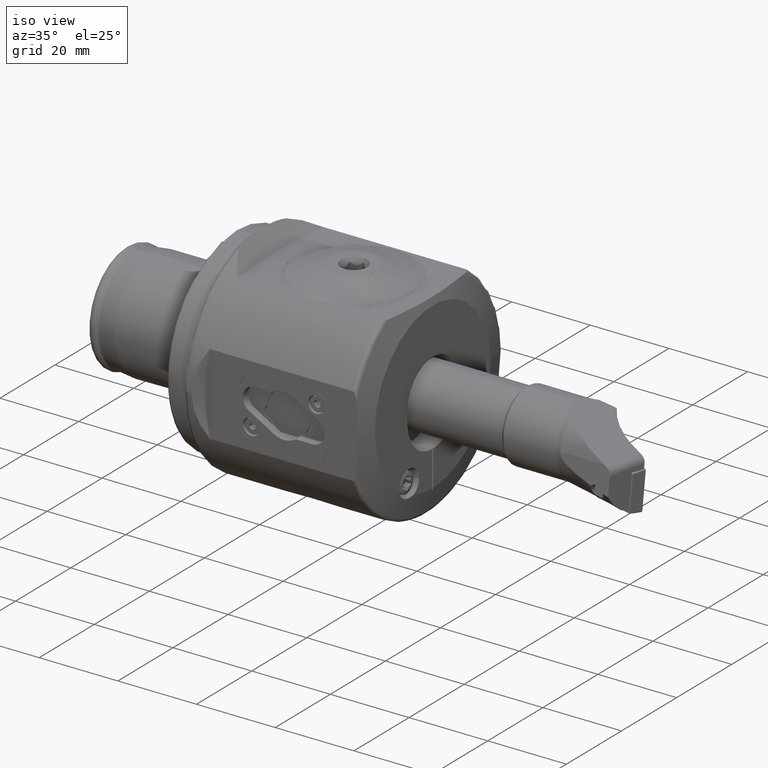
[diagram: clean part render]
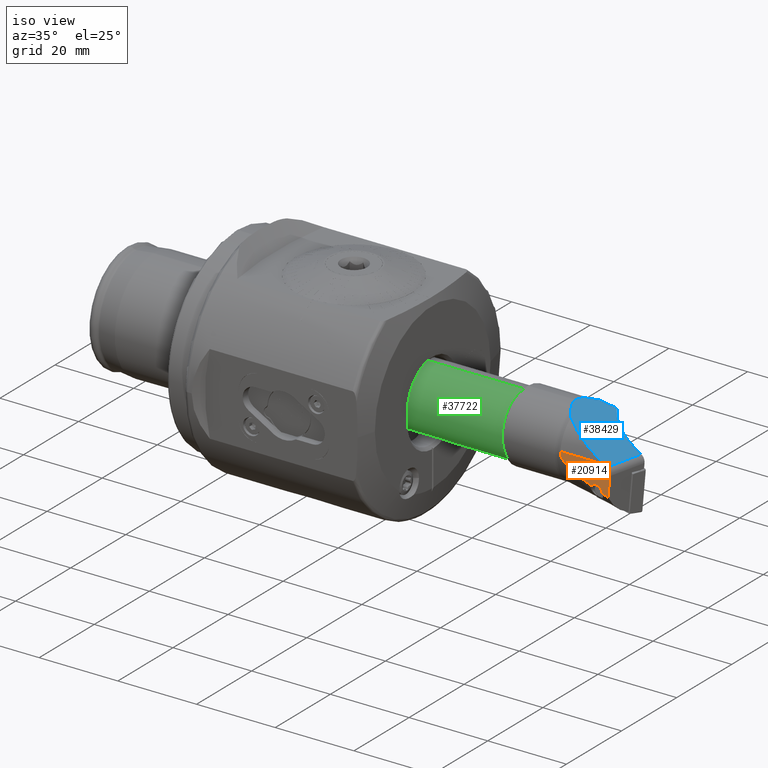
[diagram: same view with three faces highlighted in distinct colors, each labeled with its STEP entity id]
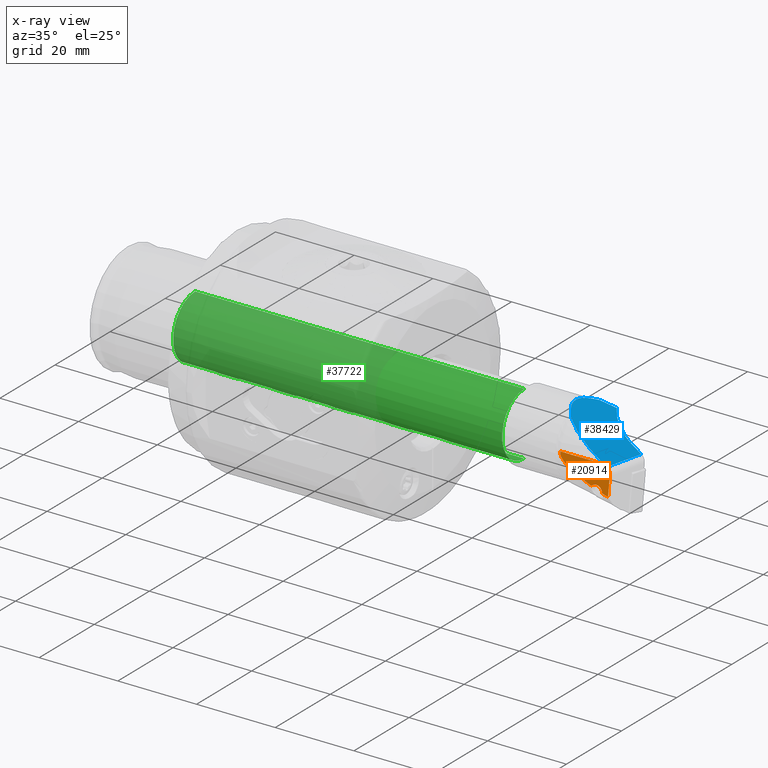
[diagram: x-ray of the same camera — body ghosted, the three highlighted faces saturated]
A machine part, iso view with three faces highlighted in distinct colors.
The next image is the same camera in x-ray (body ghosted, the three faces saturated) — at least one of them is partly hidden behind the body in this view.
Their STEP definitions:

[orange] entity #20914 — the highlighted planar face has unit normal (0, -0.9903, 0.1392).
#55 = CARTESIAN_POINT ( 'NONE',  ( 111.5769048688166800, -9.110466232422449900, 1.280392528832599900 ) ) ;
#392 = B_SPLINE_CURVE_WITH_KNOTS ( 'NONE', 3,
 ( #19916, #41211, #27107, #6178, #30753, #9709, #34252, #13151, #37773, #16600, #41367, #20068, #44915, #23670, #2857, #27258, #6346, #30912 ),
 .UNSPECIFIED., .F., .F.,
 ( 4, 2, 2, 2, 2, 2, 2, 2, 4 ),
 ( 1.987282006585292200E-007, 0.0006552519725536997200, 0.001310305216906740900, 0.001965358461259782500, 0.002620411705612823400, 0.003930518194318939400, 0.005240624683025055900, 0.007860837660437325300, 0.01048105063784959600 ),
 .UNSPECIFIED. ) ;
#669 =( BOUNDED_CURVE ( )  B_SPLINE_CURVE ( 3, ( #19282, #40560, #26435, #5530 ),
 .UNSPECIFIED., .F., .F. ) 
 B_SPLINE_CURVE_WITH_KNOTS ( ( 4, 4 ),
 ( 5.763884693139955200, 6.802485921219215500 ),
 .UNSPECIFIED. ) 
 CURVE ( )  GEOMETRIC_REPRESENTATION_ITEM ( )  RATIONAL_B_SPLINE_CURVE ( ( 1.000000000000000000, 0.9121109855992486400, 0.9121109855992486400, 1.000000000000000000 ) ) 
 REPRESENTATION_ITEM ( '' )  );
#1428 = CARTESIAN_POINT ( 'NONE',  ( 112.3663680754273600, -9.173900885769656500, 0.8290315170559439100 ) ) ;
#1490 = CARTESIAN_POINT ( 'NONE',  ( 114.0294571135343500, -9.307532796331747300, -0.1218089333019142700 ) ) ;
#1531 = EDGE_CURVE ( 'NONE', #36490, #44803, #43460, .T. ) ;
#2232 = DIRECTION ( 'NONE',  ( -0.8660254037844397100, 0.06958655048003246900, 0.4951340343707832400 ) ) ;
#2685 = VERTEX_POINT ( 'NONE', #40298 ) ;
#2857 = CARTESIAN_POINT ( 'NONE',  ( 105.7073590255302100, -9.695733171970324800, -2.883998132338801300 ) ) ;
#3381 = EDGE_LOOP ( 'NONE', ( #26532, #20210, #11652, #39117, #18811, #31672, #20221, #24393 ) ) ;
#4045 = CARTESIAN_POINT ( 'NONE',  ( 110.1554933045272700, -9.793501442673166600, -3.579655525507661600 ) ) ;
#4362 = CARTESIAN_POINT ( 'NONE',  ( 112.8360856719757400, -10.04008534867324800, -5.334191184287879800 ) ) ;
#5530 = CARTESIAN_POINT ( 'NONE',  ( 112.3663680754273600, -9.173900885769656500, 0.8290315170559439100 ) ) ;
#5669 = CARTESIAN_POINT ( 'NONE',  ( 110.1554933045272700, -10.02313705925727500, -5.213597838931251600 ) ) ;
#6178 = CARTESIAN_POINT ( 'NONE',  ( 100.7462794054797400, -9.228409038015676900, 0.4411858609415240700 ) ) ;
#6346 = CARTESIAN_POINT ( 'NONE',  ( 108.1316334789693900, -9.826750711387155900, -3.816236365406596100 ) ) ;
#6540 = VERTEX_POINT ( 'NONE', #4045 ) ;
#6564 = LINE ( 'NONE', #26798, #23963 ) ;
#6639 = CARTESIAN_POINT ( 'NONE',  ( 108.9504250321108000, -9.866277770711130700, -4.097486006536057000 ) ) ;
#6940 = CARTESIAN_POINT ( 'NONE',  ( 113.3589142270677600, -10.06160103403277600, -5.487283240451421100 ) ) ;
#8668 = B_SPLINE_CURVE_WITH_KNOTS ( 'NONE', 3,
 ( #42918, #18124, #4362, #28872 ),
 .UNSPECIFIED., .F., .F.,
 ( 4, 4 ),
 ( 0.01349627439771122800, 0.01514428454471194300 ),
 .UNSPECIFIED. ) ;
#9202 = DIRECTION ( 'NONE',  ( 0.0000000000000000000, -0.1391731009600651000, -0.9902680687415703600 ) ) ;
#9419 = DIRECTION ( 'NONE',  ( -1.000000000000000000, -8.673617379884034200E-017, 0.0000000000000000000 ) ) ;
#9709 = CARTESIAN_POINT ( 'NONE',  ( 101.1194382890196600, -9.303652733762181300, -0.09420085357345628400 ) ) ;
#10950 = CARTESIAN_POINT ( 'NONE',  ( 100.5382313599749400, -9.110466232422451700, 1.280392528832599200 ) ) ;
#11207 = VERTEX_POINT ( 'NONE', #44936 ) ;
#11438 = AXIS2_PLACEMENT_3D ( 'NONE', #35661, #14566, #39259 ) ;
#11652 = ORIENTED_EDGE ( 'NONE', *, *, #1531, .T. ) ;
#12941 = FACE_OUTER_BOUND ( 'NONE', #3381, .T. ) ;
#13151 = CARTESIAN_POINT ( 'NONE',  ( 101.5799331571696600, -9.368430106590549800, -0.5551158108920015700 ) ) ;
#13252 = EDGE_CURVE ( 'NONE', #22685, #2685, #42718, .T. ) ;
#14566 = DIRECTION ( 'NONE',  ( -8.589206331781083100E-017, 0.9902680687415703600, -0.1391731009600656000 ) ) ;
#14930 = DIRECTION ( 'NONE',  ( 0.0000000000000000000, -0.1391731009600655800, -0.9902680687415702500 ) ) ;
#15071 = DIRECTION ( 'NONE',  ( 8.589206331781083100E-017, -0.9902680687415703600, 0.1391731009600656000 ) ) ;
#15214 = PLANE ( 'NONE',  #34885 ) ;
#15673 = CARTESIAN_POINT ( 'NONE',  ( 115.0000000000000000, -9.110466232422449900, 1.280392528832599200 ) ) ;
#16600 = CARTESIAN_POINT ( 'NONE',  ( 102.2614999293298600, -9.444249427947230700, -1.094598314445069100 ) ) ;
#18124 = CARTESIAN_POINT ( 'NONE',  ( 112.3142572082866900, -10.01814299224514700, -5.178063205721617400 ) ) ;
#18811 = ORIENTED_EDGE ( 'NONE', *, *, #29265, .T. ) ;
#19282 = CARTESIAN_POINT ( 'NONE',  ( 113.3589142270686800, -9.413158981143531900, -0.8733782906026246200 ) ) ;
#19916 = CARTESIAN_POINT ( 'NONE',  ( 100.5382313599749400, -9.110466232422451700, 1.280392528832599200 ) ) ;
#20068 = CARTESIAN_POINT ( 'NONE',  ( 103.3728591520640200, -9.539227116706257400, -1.770399685343084600 ) ) ;
#20210 = ORIENTED_EDGE ( 'NONE', *, *, #31814, .T. ) ;
#20221 = ORIENTED_EDGE ( 'NONE', *, *, #25272, .T. ) ;
#20914 = ADVANCED_FACE ( 'NONE', ( #12941 ), #15214, .T. ) ;
#21554 = CARTESIAN_POINT ( 'NONE',  ( 113.3589142270686800, -10.95514547250020200, -11.84518228352731500 ) ) ;
#22685 = VERTEX_POINT ( 'NONE', #6940 ) ;
#23670 = CARTESIAN_POINT ( 'NONE',  ( 104.9133417737076900, -9.648039232792855900, -2.544638121574216400 ) ) ;
#23963 = VECTOR ( 'NONE', #9419, 1000.000000000000000 ) ;
#24393 = ORIENTED_EDGE ( 'NONE', *, *, #44945, .T. ) ;
#25272 = EDGE_CURVE ( 'NONE', #6540, #11207, #30236, .T. ) ;
#25658 = EDGE_CURVE ( 'NONE', #41868, #6540, #28003, .T. ) ;
#26435 = CARTESIAN_POINT ( 'NONE',  ( 112.9961856529835800, -9.224507753030492200, 0.4689449460034944000 ) ) ;
#26532 = ORIENTED_EDGE ( 'NONE', *, *, #13252, .T. ) ;
#26798 = CARTESIAN_POINT ( 'NONE',  ( 115.0000000000000000, -9.110466232422449900, 1.280392528832599200 ) ) ;
#27107 = CARTESIAN_POINT ( 'NONE',  ( 100.5842763543046900, -9.171336470702526000, 0.8472782783802462700 ) ) ;
#27258 = CARTESIAN_POINT ( 'NONE',  ( 107.3164540092876100, -9.785175525566325300, -3.520413547014574500 ) ) ;
#28003 = CIRCLE ( 'NONE', #11438, 1.649999999999999000 ) ;
#28872 = CARTESIAN_POINT ( 'NONE',  ( 113.3589142270677600, -10.06160103403277600, -5.487283240451421100 ) ) ;
#29265 = EDGE_CURVE ( 'NONE', #32693, #41868, #392, .T. ) ;
#30218 = DIRECTION ( 'NONE',  ( -8.589206331781083100E-017, 0.9902680687415703600, -0.1391731009600656000 ) ) ;
#30236 = CIRCLE ( 'NONE', #45406, 1.649999999999999000 ) ;
#30753 = CARTESIAN_POINT ( 'NONE',  ( 100.8579471295959300, -9.254503144262018900, 0.2555166474236100200 ) ) ;
#30912 = CARTESIAN_POINT ( 'NONE',  ( 108.9504250321108000, -9.866277770711130700, -4.097486006536057000 ) ) ;
#31672 = ORIENTED_EDGE ( 'NONE', *, *, #25658, .T. ) ;
#31814 = EDGE_CURVE ( 'NONE', #2685, #36490, #669, .T. ) ;
#32693 = VERTEX_POINT ( 'NONE', #10950 ) ;
#33261 = EDGE_CURVE ( 'NONE', #44803, #32693, #6564, .T. ) ;
#34252 = CARTESIAN_POINT ( 'NONE',  ( 101.2673849842539700, -9.326269440584608700, -0.2551270845178004700 ) ) ;
#34885 = AXIS2_PLACEMENT_3D ( 'NONE', #15673, #15071, #14930 ) ;
#35661 = CARTESIAN_POINT ( 'NONE',  ( 110.1554933045272700, -10.02313705925727500, -5.213597838931251600 ) ) ;
#36490 = VERTEX_POINT ( 'NONE', #1428 ) ;
#37773 = CARTESIAN_POINT ( 'NONE',  ( 101.7455671068393700, -9.388101247881477800, -0.6950832540382119200 ) ) ;
#39015 = DIRECTION ( 'NONE',  ( -1.400806251305398600E-017, 0.1391731009600656000, 0.9902680687415703600 ) ) ;
#39117 = ORIENTED_EDGE ( 'NONE', *, *, #33261, .T. ) ;
#39259 = DIRECTION ( 'NONE',  ( -8.410780489584524800E-015, -0.1391731009600651000, -0.9902680687415703600 ) ) ;
#40298 = CARTESIAN_POINT ( 'NONE',  ( 113.3589142270686800, -9.413158981143531900, -0.8733782906026246200 ) ) ;
#40560 = CARTESIAN_POINT ( 'NONE',  ( 113.3589142270686900, -9.311945246621865700, -0.1532051484977413300 ) ) ;
#41211 = CARTESIAN_POINT ( 'NONE',  ( 100.5382313599749300, -9.141349516282712500, 1.060646545925526100 ) ) ;
#41367 = CARTESIAN_POINT ( 'NONE',  ( 102.6280333394374700, -9.477646081028375100, -1.332227848607597600 ) ) ;
#41868 = VERTEX_POINT ( 'NONE', #6639 ) ;
#42718 = LINE ( 'NONE', #21554, #42982 ) ;
#42918 = CARTESIAN_POINT ( 'NONE',  ( 111.7936543085675100, -9.995677770919829900, -5.018214850096781800 ) ) ;
#42982 = VECTOR ( 'NONE', #39015, 999.9999999999998900 ) ;
#43243 = VECTOR ( 'NONE', #2232, 1000.000000000000100 ) ;
#43460 = LINE ( 'NONE', #1490, #43243 ) ;
#44803 = VERTEX_POINT ( 'NONE', #55 ) ;
#44915 = CARTESIAN_POINT ( 'NONE',  ( 103.7539621381306000, -9.567564362632383600, -1.972029667021573600 ) ) ;
#44936 = CARTESIAN_POINT ( 'NONE',  ( 111.7936543085675100, -9.995677770919829900, -5.018214850096781800 ) ) ;
#44945 = EDGE_CURVE ( 'NONE', #11207, #22685, #8668, .T. ) ;
#45406 = AXIS2_PLACEMENT_3D ( 'NONE', #5669, #30218, #9202 ) ;

[blue] entity #38429 — the highlighted planar face has unit normal (-0.4963, 0.0011, -0.8682).
#55 = CARTESIAN_POINT ( 'NONE',  ( 111.5769048688166800, -9.110466232422449900, 1.280392528832599900 ) ) ;
#1389 = VECTOR ( 'NONE', #15544, 1000.000000000000200 ) ;
#1428 = CARTESIAN_POINT ( 'NONE',  ( 112.3663680754273600, -9.173900885769656500, 0.8290315170559439100 ) ) ;
#1490 = CARTESIAN_POINT ( 'NONE',  ( 114.0294571135343500, -9.307532796331747300, -0.1218089333019142700 ) ) ;
#1531 = EDGE_CURVE ( 'NONE', #36490, #44803, #43460, .T. ) ;
#2232 = DIRECTION ( 'NONE',  ( -0.8660254037844397100, 0.06958655048003246900, 0.4951340343707832400 ) ) ;
#2256 = CARTESIAN_POINT ( 'NONE',  ( 100.5382313599749000, 5.173112694648220400, 7.607818678732391100 ) ) ;
#2301 = CARTESIAN_POINT ( 'NONE',  ( 100.2096549170152000, 4.794527520458168500, 7.795184390680554500 ) ) ;
#2309 = CARTESIAN_POINT ( 'NONE',  ( 99.91746879905727500, 4.407241666153098900, 7.961737591236588900 ) ) ;
#2353 = B_SPLINE_CURVE_WITH_KNOTS ( 'NONE', 3,
 ( #9687, #30732, #13124, #37755 ),
 .UNSPECIFIED., .F., .F.,
 ( 4, 4 ),
 ( 3.858973815313627300E-007, 0.0009931425329959117600 ),
 .UNSPECIFIED. ) ;
#2409 = CARTESIAN_POINT ( 'NONE',  ( 99.66245353847440900, 4.012289709108245000, 8.107033357945542900 ) ) ;
#2476 = LINE ( 'NONE', #29675, #1389 ) ;
#2868 = CARTESIAN_POINT ( 'NONE',  ( 100.5382313599749000, 5.173112694648220400, 7.607818678732391100 ) ) ;
#2994 = EDGE_CURVE ( 'NONE', #36490, #25573, #36480, .T. ) ;
#3237 =( BOUNDED_CURVE ( )  B_SPLINE_CURVE ( 3, ( #10493, #10299, #10250, #10199 ),
 .UNSPECIFIED., .F., .T. ) 
 B_SPLINE_CURVE_WITH_KNOTS ( ( 4, 4 ),
 ( 5.915960066755554100, 6.284399673238439700 ),
 .UNSPECIFIED. ) 
 CURVE ( )  GEOMETRIC_REPRESENTATION_ITEM ( )  RATIONAL_B_SPLINE_CURVE ( ( 1.000000000000000000, 0.9887196439632092200, 0.9887196439632092200, 1.000000000000000000 ) ) 
 REPRESENTATION_ITEM ( '' )  );
#4319 = EDGE_LOOP ( 'NONE', ( #5263, #23538, #35746, #37552, #9831, #16440, #17523, #25263, #28692, #22099, #44038, #13880 ) ) ;
#5263 = ORIENTED_EDGE ( 'NONE', *, *, #1531, .F. ) ;
#6152 = EDGE_CURVE ( 'NONE', #22156, #38614, #14051, .T. ) ;
#7897 = VERTEX_POINT ( 'NONE', #43214 ) ;
#8134 = EDGE_CURVE ( 'NONE', #10211, #28746, #38644, .T. ) ;
#8812 =( BOUNDED_CURVE ( )  B_SPLINE_CURVE ( 3, ( #28459, #27412, #27103, #27001 ),
 .UNSPECIFIED., .F., .F. ) 
 B_SPLINE_CURVE_WITH_KNOTS ( ( 4, 4 ),
 ( 0.2058163401145186300, 1.120656838333183400 ),
 .UNSPECIFIED. ) 
 CURVE ( )  GEOMETRIC_REPRESENTATION_ITEM ( )  RATIONAL_B_SPLINE_CURVE ( ( 1.000000000000000000, 0.9314631934101035300, 0.9314631934101035300, 1.000000000000000000 ) ) 
 REPRESENTATION_ITEM ( '' )  );
#8988 = DIRECTION ( 'NONE',  ( -0.4962730758206591600, 0.001054271645682447500, -0.8681658382629435800 ) ) ;
#9368 =( BOUNDED_CURVE ( )  B_SPLINE_CURVE ( 3, ( #2409, #2309, #2301, #2256 ),
 .UNSPECIFIED., .F., .F. ) 
 B_SPLINE_CURVE_WITH_KNOTS ( ( 4, 4 ),
 ( 3.479385156939095700, 3.582766940005862800 ),
 .UNSPECIFIED. ) 
 CURVE ( )  GEOMETRIC_REPRESENTATION_ITEM ( )  RATIONAL_B_SPLINE_CURVE ( ( 1.000000000000000000, 0.9991095488739311100, 0.9991095488739311100, 1.000000000000000000 ) ) 
 REPRESENTATION_ITEM ( '' )  );
#9687 = CARTESIAN_POINT ( 'NONE',  ( 99.66245353846581200, -4.031967668312717000, 8.097264680020725100 ) ) ;
#9831 = ORIENTED_EDGE ( 'NONE', *, *, #6152, .T. ) ;
#10199 = CARTESIAN_POINT ( 'NONE',  ( 98.09179977023268300, 0.0000000000000000000, 9.000000000000000000 ) ) ;
#10211 = VERTEX_POINT ( 'NONE', #15192 ) ;
#10250 = CARTESIAN_POINT ( 'NONE',  ( 98.08943827544237600, -1.111616999194256400, 9.000000000000000000 ) ) ;
#10299 = CARTESIAN_POINT ( 'NONE',  ( 98.44333341705309700, -2.204424845097321800, 8.796374449465828200 ) ) ;
#10493 = CARTESIAN_POINT ( 'NONE',  ( 99.14150900547362300, -3.241441752964435700, 8.396014254522130600 ) ) ;
#10833 = EDGE_CURVE ( 'NONE', #10211, #44803, #30480, .T. ) ;
#11706 = EDGE_CURVE ( 'NONE', #30482, #41502, #29382, .T. ) ;
#11764 = CARTESIAN_POINT ( 'NONE',  ( 98.09179977023268300, 0.0000000000000000000, 9.000000000000000000 ) ) ;
#13124 = CARTESIAN_POINT ( 'NONE',  ( 99.31752370766106700, -3.502880601914339500, 8.295080790720936300 ) ) ;
#13880 = ORIENTED_EDGE ( 'NONE', *, *, #10833, .T. ) ;
#14051 =( BOUNDED_CURVE ( )  B_SPLINE_CURVE ( 3, ( #14178, #14315, #15615, #14126 ),
 .UNSPECIFIED., .F., .T. ) 
 B_SPLINE_CURVE_WITH_KNOTS ( ( 4, 4 ),
 ( 5.402371898070074800, 5.684812619843684800 ),
 .UNSPECIFIED. ) 
 CURVE ( )  GEOMETRIC_REPRESENTATION_ITEM ( )  RATIONAL_B_SPLINE_CURVE ( ( 1.000000000000000000, 0.9933633106273864800, 0.9933633106273864800, 1.000000000000000000 ) ) 
 REPRESENTATION_ITEM ( '' )  );
#14126 = CARTESIAN_POINT ( 'NONE',  ( 100.5382313599749000, 5.173112694648220400, 7.607818678732391100 ) ) ;
#14178 = CARTESIAN_POINT ( 'NONE',  ( 103.5917788389865600, 7.088446790305051900, 5.864633159969653100 ) ) ;
#14315 = CARTESIAN_POINT ( 'NONE',  ( 102.4192524458440900, 6.534466521105657400, 6.534216329792046800 ) ) ;
#15180 = CARTESIAN_POINT ( 'NONE',  ( 99.14150900547362300, 3.221040543325383700, 8.403862077536384600 ) ) ;
#15192 = CARTESIAN_POINT ( 'NONE',  ( 100.5382313599749000, -5.191574772638332100, 7.595232147874434700 ) ) ;
#15544 = DIRECTION ( 'NONE',  ( 0.8660254037844397100, -0.06958655048003192800, -0.4951340343707832400 ) ) ;
#15615 = CARTESIAN_POINT ( 'NONE',  ( 101.3946030061262900, 5.891756354823162800, 7.119160260548469800 ) ) ;
#16440 = ORIENTED_EDGE ( 'NONE', *, *, #20609, .F. ) ;
#16578 = EDGE_CURVE ( 'NONE', #7897, #36901, #3237, .T. ) ;
#17523 = ORIENTED_EDGE ( 'NONE', *, *, #11706, .F. ) ;
#19542 = EDGE_CURVE ( 'NONE', #22156, #29803, #8812, .T. ) ;
#19755 = CARTESIAN_POINT ( 'NONE',  ( 111.5769048688166800, -9.110466232422449900, 1.280392528832599900 ) ) ;
#19800 = CARTESIAN_POINT ( 'NONE',  ( 107.0276177283778600, -8.744923607618448000, 3.881363453603839300 ) ) ;
#20609 = EDGE_CURVE ( 'NONE', #41502, #38614, #9368, .T. ) ;
#22099 = ORIENTED_EDGE ( 'NONE', *, *, #45174, .F. ) ;
#22156 = VERTEX_POINT ( 'NONE', #25180 ) ;
#22705 = CARTESIAN_POINT ( 'NONE',  ( 100.5382313599749000, -5.191574772638332100, 7.595232147874434700 ) ) ;
#22759 = CARTESIAN_POINT ( 'NONE',  ( 114.7000000000000200, 1.670077211520788900, -0.4917831751011589300 ) ) ;
#22842 = CARTESIAN_POINT ( 'NONE',  ( 111.6886399460226200, 1.710044902795327300, 1.229661032130867400 ) ) ;
#23538 = ORIENTED_EDGE ( 'NONE', *, *, #2994, .T. ) ;
#24389 = CARTESIAN_POINT ( 'NONE',  ( 99.66245353846581200, -4.031967668312717000, 8.097264680020725100 ) ) ;
#25180 = CARTESIAN_POINT ( 'NONE',  ( 103.5917788389865600, 7.088446790305051900, 5.864633159969653100 ) ) ;
#25263 = ORIENTED_EDGE ( 'NONE', *, *, #41975, .F. ) ;
#25573 = VERTEX_POINT ( 'NONE', #31919 ) ;
#26323 = PLANE ( 'NONE',  #31202 ) ;
#27001 = CARTESIAN_POINT ( 'NONE',  ( 111.6886399460226200, 1.710044902795327300, 1.229661032130867400 ) ) ;
#27103 = CARTESIAN_POINT ( 'NONE',  ( 108.2922995202507400, 1.982946382881899200, 3.171455960732740800 ) ) ;
#27412 = CARTESIAN_POINT ( 'NONE',  ( 105.3947575438850400, 3.907660791195116000, 4.830126663139555600 ) ) ;
#28459 = CARTESIAN_POINT ( 'NONE',  ( 103.5917788389865600, 7.088446790305051900, 5.864633159969653100 ) ) ;
#28550 = CARTESIAN_POINT ( 'NONE',  ( 99.14150900547362300, 3.221040543325383700, 8.403862077536384600 ) ) ;
#28692 = ORIENTED_EDGE ( 'NONE', *, *, #16578, .F. ) ;
#28746 = VERTEX_POINT ( 'NONE', #24389 ) ;
#29382 = B_SPLINE_CURVE_WITH_KNOTS ( 'NONE', 3,
 ( #36005, #36154, #36676, #35959 ),
 .UNSPECIFIED., .F., .F.,
 ( 4, 4 ),
 ( 3.760104768627722700E-007, 0.0009931326461078452600 ),
 .UNSPECIFIED. ) ;
#29675 = CARTESIAN_POINT ( 'NONE',  ( 124.9376037986380100, 0.6454690971557735000, -6.345189422499644600 ) ) ;
#29803 = VERTEX_POINT ( 'NONE', #22842 ) ;
#30480 =( BOUNDED_CURVE ( )  B_SPLINE_CURVE ( 3, ( #22705, #31391, #19800, #19755 ),
 .UNSPECIFIED., .F., .F. ) 
 B_SPLINE_CURVE_WITH_KNOTS ( ( 4, 4 ),
 ( 0.5983726873359015400, 1.429955620576496900 ),
 .UNSPECIFIED. ) 
 CURVE ( )  GEOMETRIC_REPRESENTATION_ITEM ( )  RATIONAL_B_SPLINE_CURVE ( ( 1.000000000000000000, 0.9431979483554062700, 0.9431979483554062700, 1.000000000000000000 ) ) 
 REPRESENTATION_ITEM ( '' )  );
#30482 = VERTEX_POINT ( 'NONE', #28550 ) ;
#30732 = CARTESIAN_POINT ( 'NONE',  ( 99.49094655887394400, -3.766586313463173900, 8.195626164152990600 ) ) ;
#31202 = AXIS2_PLACEMENT_3D ( 'NONE', #22759, #8988, #33521 ) ;
#31391 = CARTESIAN_POINT ( 'NONE',  ( 103.1264664984622200, -7.359957540273753400, 6.113075835242151300 ) ) ;
#31919 = CARTESIAN_POINT ( 'NONE',  ( 113.6828969361781400, 1.549803108375453800, 0.08948141985517729700 ) ) ;
#32880 = CARTESIAN_POINT ( 'NONE',  ( 98.09414552225521800, 1.104206469091230500, 8.999999999999998200 ) ) ;
#33521 = DIRECTION ( 'NONE',  ( -0.8681663207416064900, 0.0000000000000000000, 0.4962733516218477100 ) ) ;
#34850 = CARTESIAN_POINT ( 'NONE',  ( 113.7172330551766800, 1.829485831197173100, 0.07019336556338996700 ) ) ;
#34902 = DIRECTION ( 'NONE',  ( 0.1215687888871666200, 0.9902310126412593400, -0.06829034464676429800 ) ) ;
#35241 = CARTESIAN_POINT ( 'NONE',  ( 99.66245353846581200, -4.031967668312717000, 8.097264680020725100 ) ) ;
#35282 = CARTESIAN_POINT ( 'NONE',  ( 99.91746879905068100, -4.426565576355115700, 7.951010110281367300 ) ) ;
#35335 = CARTESIAN_POINT ( 'NONE',  ( 100.5382313599749000, -5.191574772638332100, 7.595232147874434700 ) ) ;
#35427 = CARTESIAN_POINT ( 'NONE',  ( 100.2096549170114900, -4.813445775706157700, 7.783516788282085500 ) ) ;
#35746 = ORIENTED_EDGE ( 'NONE', *, *, #38406, .F. ) ;
#35959 = CARTESIAN_POINT ( 'NONE',  ( 99.66245353847440900, 4.012289709108245000, 8.107033357945542900 ) ) ;
#36005 = CARTESIAN_POINT ( 'NONE',  ( 99.14150900547362300, 3.221040543325383700, 8.403862077536384600 ) ) ;
#36154 = CARTESIAN_POINT ( 'NONE',  ( 99.31752370766400900, 3.482723761304465700, 8.303563875728489300 ) ) ;
#36351 = CARTESIAN_POINT ( 'NONE',  ( 98.44798776402596700, 2.189974002062479400, 8.799050278108051500 ) ) ;
#36468 = VECTOR ( 'NONE', #34902, 999.9999999999998900 ) ;
#36480 = LINE ( 'NONE', #34850, #36468 ) ;
#36490 = VERTEX_POINT ( 'NONE', #1428 ) ;
#36676 = CARTESIAN_POINT ( 'NONE',  ( 99.49094655887975600, 3.746670243500781300, 8.204750012388846200 ) ) ;
#36901 = VERTEX_POINT ( 'NONE', #40768 ) ;
#37546 = FACE_OUTER_BOUND ( 'NONE', #4319, .T. ) ;
#37552 = ORIENTED_EDGE ( 'NONE', *, *, #19542, .F. ) ;
#37755 = CARTESIAN_POINT ( 'NONE',  ( 99.14150900547362300, -3.241441752964435700, 8.396014254522130600 ) ) ;
#38406 = EDGE_CURVE ( 'NONE', #29803, #25573, #2476, .T. ) ;
#38429 = ADVANCED_FACE ( 'NONE', ( #37546 ), #26323, .F. ) ;
#38614 = VERTEX_POINT ( 'NONE', #2868 ) ;
#38644 =( BOUNDED_CURVE ( )  B_SPLINE_CURVE ( 3, ( #35335, #35427, #35282, #35241 ),
 .UNSPECIFIED., .F., .T. ) 
 B_SPLINE_CURVE_WITH_KNOTS ( ( 4, 4 ),
 ( 2.700418367173723400, 2.803800150241653200 ),
 .UNSPECIFIED. ) 
 CURVE ( )  GEOMETRIC_REPRESENTATION_ITEM ( )  RATIONAL_B_SPLINE_CURVE ( ( 1.000000000000000000, 0.9991095488739111200, 0.9991095488739111200, 1.000000000000000000 ) ) 
 REPRESENTATION_ITEM ( '' )  );
#39677 = CARTESIAN_POINT ( 'NONE',  ( 99.66245353847440900, 4.012289709108245000, 8.107033357945542900 ) ) ;
#40768 = CARTESIAN_POINT ( 'NONE',  ( 98.09179977023268300, 0.0000000000000000000, 9.000000000000000000 ) ) ;
#41502 = VERTEX_POINT ( 'NONE', #39677 ) ;
#41975 = EDGE_CURVE ( 'NONE', #36901, #30482, #43734, .T. ) ;
#43214 = CARTESIAN_POINT ( 'NONE',  ( 99.14150900547362300, -3.241441752964435700, 8.396014254522130600 ) ) ;
#43243 = VECTOR ( 'NONE', #2232, 1000.000000000000100 ) ;
#43460 = LINE ( 'NONE', #1490, #43243 ) ;
#43734 =( BOUNDED_CURVE ( )  B_SPLINE_CURVE ( 3, ( #11764, #32880, #36351, #15180 ),
 .UNSPECIFIED., .F., .F. ) 
 B_SPLINE_CURVE_WITH_KNOTS ( ( 4, 4 ),
 ( 0.001214366058853823000, 0.3672252404240312100 ),
 .UNSPECIFIED. ) 
 CURVE ( )  GEOMETRIC_REPRESENTATION_ITEM ( )  RATIONAL_B_SPLINE_CURVE ( ( 1.000000000000000000, 0.9888674587370376300, 0.9888674587370376300, 1.000000000000000000 ) ) 
 REPRESENTATION_ITEM ( '' )  );
#44038 = ORIENTED_EDGE ( 'NONE', *, *, #8134, .F. ) ;
#44803 = VERTEX_POINT ( 'NONE', #55 ) ;
#45174 = EDGE_CURVE ( 'NONE', #28746, #7897, #2353, .T. ) ;

[green] entity #37722 — the highlighted cylindrical surface (partial cylindrical patch) has radius 8 mm, axis along (-1, -0, -0).
#127 = CARTESIAN_POINT ( 'NONE',  ( 43.82410190692352400, -3.613637765511927800, -7.375898093076464200 ) ) ;
#695 = CARTESIAN_POINT ( 'NONE',  ( 54.17589809307646900, -3.613637765511933200, -7.375898093076462400 ) ) ;
#1536 = VERTEX_POINT ( 'NONE', #36880 ) ;
#1670 = EDGE_CURVE ( 'NONE', #20081, #13040, #42911, .T. ) ;
#1911 = EDGE_CURVE ( 'NONE', #19893, #32925, #41796, .T. ) ;
#2113 = CARTESIAN_POINT ( 'NONE',  ( 45.00000000000000000, -5.055689863905811900, -6.199999999999997500 ) ) ;
#2504 = EDGE_CURVE ( 'NONE', #41581, #33198, #38735, .T. ) ;
#3143 = EDGE_CURVE ( 'NONE', #13040, #33022, #7149, .T. ) ;
#4176 = VERTEX_POINT ( 'NONE', #11025 ) ;
#4681 = ORIENTED_EDGE ( 'NONE', *, *, #36216, .T. ) ;
#5124 = CARTESIAN_POINT ( 'NONE',  ( 25.80000000000001800, 9.797174393178825700E-016, -8.000000000000000000 ) ) ;
#5227 = DIRECTION ( 'NONE',  ( 1.000000000000000000, 0.0000000000000000000, 0.0000000000000000000 ) ) ;
#5228 = CARTESIAN_POINT ( 'NONE',  ( 24.00000000000000000, -5.055689863905819000, -6.199999999999997500 ) ) ;
#5284 = CARTESIAN_POINT ( 'NONE',  ( 25.17589809307647300, -3.613637765511933200, -7.375898093076462400 ) ) ;
#5370 = CARTESIAN_POINT ( 'NONE',  ( -3.175455607189903200, -5.055689863905819000, -6.199999999999997500 ) ) ;
#5674 = EDGE_CURVE ( 'NONE', #41581, #29387, #24611, .T. ) ;
#5884 = EDGE_CURVE ( 'NONE', #19893, #33022, #23989, .T. ) ;
#6343 = ORIENTED_EDGE ( 'NONE', *, *, #15784, .T. ) ;
#6476 = CARTESIAN_POINT ( 'NONE',  ( 14.19999999999998000, 9.797174393178825700E-016, -8.000000000000000000 ) ) ;
#6492 = CARTESIAN_POINT ( 'NONE',  ( 25.80000000000001500, -1.860712385024368500, -7.999999999999998200 ) ) ;
#6868 = VERTEX_POINT ( 'NONE', #28562 ) ;
#7136 = CARTESIAN_POINT ( 'NONE',  ( 11.30000000000000100, 9.797174393178825700E-016, -8.000000000000000000 ) ) ;
#7138 = CARTESIAN_POINT ( 'NONE',  ( 57.69999999999998200, -1.860712385024367600, -7.999999999999998200 ) ) ;
#7149 =( BOUNDED_CURVE ( )  B_SPLINE_CURVE ( 3, ( #32827, #32980, #32923, #32774 ),
 .UNSPECIFIED., .F., .F. ) 
 B_SPLINE_CURVE_WITH_KNOTS ( ( 4, 4 ),
 ( 2.457511421794463100, 3.141592653589793100 ),
 .UNSPECIFIED. ) 
 CURVE ( )  GEOMETRIC_REPRESENTATION_ITEM ( )  RATIONAL_B_SPLINE_CURVE ( ( 1.000000000000000000, 0.9613814560472256900, 0.9613814560472256900, 1.000000000000000000 ) ) 
 REPRESENTATION_ITEM ( '' )  );
#7202 = CARTESIAN_POINT ( 'NONE',  ( 11.29999999999999900, -1.860712385024369400, -7.999999999999998200 ) ) ;
#7212 = ORIENTED_EDGE ( 'NONE', *, *, #8909, .T. ) ;
#7257 = CARTESIAN_POINT ( 'NONE',  ( -3.175455607189903200, 9.797174393178825700E-016, -8.000000000000000000 ) ) ;
#7597 = CARTESIAN_POINT ( 'NONE',  ( 10.67589809307646000, -3.613637765511935800, -7.375898093076462400 ) ) ;
#7721 = CARTESIAN_POINT ( 'NONE',  ( -3.175455607189903200, -5.055689863905819000, -6.199999999999997500 ) ) ;
#7748 = CARTESIAN_POINT ( 'NONE',  ( 9.499999999999998200, -5.055689863905819000, -6.199999999999996600 ) ) ;
#7860 = VERTEX_POINT ( 'NONE', #44338 ) ;
#7965 = CARTESIAN_POINT ( 'NONE',  ( 40.30000000000001800, 9.797174393178825700E-016, -8.000000000000000000 ) ) ;
#8288 = CARTESIAN_POINT ( 'NONE',  ( 67.50000000000000000, -5.055689863905819000, -6.199999999999997500 ) ) ;
#8909 = EDGE_CURVE ( 'NONE', #29387, #4176, #9934, .T. ) ;
#8943 = VERTEX_POINT ( 'NONE', #6476 ) ;
#9221 = VERTEX_POINT ( 'NONE', #40258 ) ;
#9934 =( BOUNDED_CURVE ( )  B_SPLINE_CURVE ( 3, ( #7748, #7597, #7202, #7136 ),
 .UNSPECIFIED., .F., .F. ) 
 B_SPLINE_CURVE_WITH_KNOTS ( ( 4, 4 ),
 ( 2.457511421794463100, 3.141592653589793100 ),
 .UNSPECIFIED. ) 
 CURVE ( )  GEOMETRIC_REPRESENTATION_ITEM ( )  RATIONAL_B_SPLINE_CURVE ( ( 1.000000000000000000, 0.9613814560472256900, 0.9613814560472256900, 1.000000000000000000 ) ) 
 REPRESENTATION_ITEM ( '' )  );
#10409 = CARTESIAN_POINT ( 'NONE',  ( 30.50000000000000000, -5.055689863905818100, -6.199999999999997500 ) ) ;
#10534 = CARTESIAN_POINT ( 'NONE',  ( 29.32410190692352000, -3.613637765511932700, -7.375898093076464200 ) ) ;
#10577 = CARTESIAN_POINT ( 'NONE',  ( 28.69999999999997800, -1.860712385024367600, -7.999999999999998200 ) ) ;
#10593 = DIRECTION ( 'NONE',  ( -1.000000000000000000, -0.0000000000000000000, -0.0000000000000000000 ) ) ;
#10631 = CARTESIAN_POINT ( 'NONE',  ( 57.69999999999998900, 9.797174393178825700E-016, -8.000000000000000000 ) ) ;
#11025 = CARTESIAN_POINT ( 'NONE',  ( 11.30000000000000100, 9.797174393178825700E-016, -8.000000000000000000 ) ) ;
#11136 = CARTESIAN_POINT ( 'NONE',  ( 53.00000000000000700, -5.055689863905819000, -6.199999999999997500 ) ) ;
#11393 = CARTESIAN_POINT ( 'NONE',  ( 28.69999999999998900, 9.797174393178825700E-016, -8.000000000000000000 ) ) ;
#11618 = DIRECTION ( 'NONE',  ( -1.000000000000000000, -0.0000000000000000000, -0.0000000000000000000 ) ) ;
#11944 = VERTEX_POINT ( 'NONE', #32441 ) ;
#12691 = ORIENTED_EDGE ( 'NONE', *, *, #25225, .T. ) ;
#13040 = VERTEX_POINT ( 'NONE', #8288 ) ;
#13910 = CARTESIAN_POINT ( 'NONE',  ( -3.175455607189903200, 0.0000000000000000000, 0.0000000000000000000 ) ) ;
#14078 = CARTESIAN_POINT ( 'NONE',  ( 58.32410190692352400, -3.613637765511932700, -7.375898093076464200 ) ) ;
#14195 = ORIENTED_EDGE ( 'NONE', *, *, #30228, .F. ) ;
#14568 = VECTOR ( 'NONE', #11618, 1000.000000000000000 ) ;
#14641 = LINE ( 'NONE', #22095, #14568 ) ;
#14922 = EDGE_CURVE ( 'NONE', #8943, #18146, #19852, .T. ) ;
#15113 = CARTESIAN_POINT ( 'NONE',  ( 25.80000000000001800, 9.797174393178825700E-016, -8.000000000000000000 ) ) ;
#15123 = EDGE_CURVE ( 'NONE', #32925, #33198, #36424, .T. ) ;
#15276 = CARTESIAN_POINT ( 'NONE',  ( 59.50000000000000700, -5.055689863905818100, -6.199999999999997500 ) ) ;
#15784 = EDGE_CURVE ( 'NONE', #18146, #36938, #35066, .T. ) ;
#15908 = EDGE_CURVE ( 'NONE', #8943, #4176, #34800, .T. ) ;
#16927 = ORIENTED_EDGE ( 'NONE', *, *, #5674, .T. ) ;
#18041 = CARTESIAN_POINT ( 'NONE',  ( 54.80000000000003300, 9.797174393178825700E-016, -8.000000000000000000 ) ) ;
#18146 = VERTEX_POINT ( 'NONE', #36104 ) ;
#18369 = CARTESIAN_POINT ( 'NONE',  ( 28.69999999999998900, 9.797174393178825700E-016, -8.000000000000000000 ) ) ;
#18641 =( BOUNDED_CURVE ( )  B_SPLINE_CURVE ( 3, ( #21711, #42970, #28917, #7965 ),
 .UNSPECIFIED., .F., .F. ) 
 B_SPLINE_CURVE_WITH_KNOTS ( ( 4, 4 ),
 ( 2.457511421794463600, 3.141592653589793100 ),
 .UNSPECIFIED. ) 
 CURVE ( )  GEOMETRIC_REPRESENTATION_ITEM ( )  RATIONAL_B_SPLINE_CURVE ( ( 1.000000000000000000, 0.9613814560472256900, 0.9613814560472256900, 1.000000000000000000 ) ) 
 REPRESENTATION_ITEM ( '' )  );
#19261 = DIRECTION ( 'NONE',  ( 0.0000000000000000000, 0.0000000000000000000, 1.000000000000000000 ) ) ;
#19852 =( BOUNDED_CURVE ( )  B_SPLINE_CURVE ( 3, ( #38347, #38299, #37823, #37784 ),
 .UNSPECIFIED., .F., .F. ) 
 B_SPLINE_CURVE_WITH_KNOTS ( ( 4, 4 ),
 ( 0.0000000000000000000, 0.6840812317953298700 ),
 .UNSPECIFIED. ) 
 CURVE ( )  GEOMETRIC_REPRESENTATION_ITEM ( )  RATIONAL_B_SPLINE_CURVE ( ( 1.000000000000000000, 0.9613814560472256900, 0.9613814560472256900, 1.000000000000000000 ) ) 
 REPRESENTATION_ITEM ( '' )  );
#19893 = VERTEX_POINT ( 'NONE', #44761 ) ;
#20081 = VERTEX_POINT ( 'NONE', #15276 ) ;
#20113 = CARTESIAN_POINT ( 'NONE',  ( -3.175455607189903200, 9.797174393178825700E-016, -8.000000000000000000 ) ) ;
#20176 = ORIENTED_EDGE ( 'NONE', *, *, #3143, .T. ) ;
#20383 = DIRECTION ( 'NONE',  ( -1.000000000000000000, -0.0000000000000000000, -0.0000000000000000000 ) ) ;
#20463 = EDGE_CURVE ( 'NONE', #36938, #23091, #43435, .T. ) ;
#20535 = CARTESIAN_POINT ( 'NONE',  ( 1.374999999999999600, 0.0000000000000000000, 0.0000000000000000000 ) ) ;
#20552 = CARTESIAN_POINT ( 'NONE',  ( 9.499999999999998200, -5.055689863905819000, -6.199999999999996600 ) ) ;
#20989 = EDGE_LOOP ( 'NONE', ( #35825, #25631, #44152, #38847, #16927, #7212, #34130, #31492, #6343, #27717, #22555, #33238, #12691, #38004, #14195, #4681, #27790, #36314, #42635, #35804, #26520, #20176 ) ) ;
#21711 = CARTESIAN_POINT ( 'NONE',  ( 38.50000000000000000, -5.055689863905819000, -6.199999999999997500 ) ) ;
#22095 = CARTESIAN_POINT ( 'NONE',  ( -3.175455607189903200, 9.797174393178825700E-016, -8.000000000000000000 ) ) ;
#22300 = CARTESIAN_POINT ( 'NONE',  ( 85.00000000000000000, 1.040949779275250100E-015, 8.000000000000000000 ) ) ;
#22353 = DIRECTION ( 'NONE',  ( -1.000000000000000000, -0.0000000000000000000, -0.0000000000000000000 ) ) ;
#22547 = DIRECTION ( 'NONE',  ( -1.000000000000000000, -0.0000000000000000000, -0.0000000000000000000 ) ) ;
#22555 = ORIENTED_EDGE ( 'NONE', *, *, #27149, .F. ) ;
#22846 = CARTESIAN_POINT ( 'NONE',  ( -3.175455607189903200, 9.797174393178825700E-016, -8.000000000000000000 ) ) ;
#23091 = VERTEX_POINT ( 'NONE', #15113 ) ;
#23160 = CYLINDRICAL_SURFACE ( 'NONE', #44120, 8.000000000000000000 ) ;
#23878 = CARTESIAN_POINT ( 'NONE',  ( -3.175455607189903200, -5.055689863905819000, -6.199999999999997500 ) ) ;
#23989 = LINE ( 'NONE', #24425, #24040 ) ;
#24040 = VECTOR ( 'NONE', #22353, 1000.000000000000000 ) ;
#24291 = FACE_OUTER_BOUND ( 'NONE', #20989, .T. ) ;
#24359 = EDGE_CURVE ( 'NONE', #28433, #6868, #35785, .T. ) ;
#24388 = VECTOR ( 'NONE', #30677, 1000.000000000000000 ) ;
#24406 = CARTESIAN_POINT ( 'NONE',  ( 45.00000000000000000, -5.055689863905811900, -6.199999999999997500 ) ) ;
#24425 = CARTESIAN_POINT ( 'NONE',  ( -3.175455607189903200, 9.797174393178825700E-016, -8.000000000000000000 ) ) ;
#24445 = DIRECTION ( 'NONE',  ( 0.0000000000000000000, 0.0000000000000000000, 1.000000000000000000 ) ) ;
#24611 = LINE ( 'NONE', #31551, #24388 ) ;
#24756 = DIRECTION ( 'NONE',  ( 1.000000000000000000, 0.0000000000000000000, 0.0000000000000000000 ) ) ;
#24986 = CARTESIAN_POINT ( 'NONE',  ( 43.19999999999998900, -1.860712385024365000, -7.999999999999998200 ) ) ;
#25225 = EDGE_CURVE ( 'NONE', #6868, #1536, #30685, .T. ) ;
#25631 = ORIENTED_EDGE ( 'NONE', *, *, #1911, .T. ) ;
#26520 = ORIENTED_EDGE ( 'NONE', *, *, #1670, .T. ) ;
#26933 = VERTEX_POINT ( 'NONE', #2113 ) ;
#27149 = EDGE_CURVE ( 'NONE', #28433, #23091, #14641, .T. ) ;
#27717 = ORIENTED_EDGE ( 'NONE', *, *, #20463, .T. ) ;
#27790 = ORIENTED_EDGE ( 'NONE', *, *, #37118, .T. ) ;
#28433 = VERTEX_POINT ( 'NONE', #18369 ) ;
#28562 = CARTESIAN_POINT ( 'NONE',  ( 30.50000000000000000, -5.055689863905818100, -6.199999999999997500 ) ) ;
#28581 = DIRECTION ( 'NONE',  ( 1.000000000000000000, 0.0000000000000000000, 0.0000000000000000000 ) ) ;
#28917 = CARTESIAN_POINT ( 'NONE',  ( 40.30000000000001800, -1.860712385024368500, -7.999999999999998200 ) ) ;
#28953 = LINE ( 'NONE', #20113, #29464 ) ;
#29063 = CARTESIAN_POINT ( 'NONE',  ( -3.175455607189903200, -5.055689863905819000, -6.199999999999997500 ) ) ;
#29348 = VERTEX_POINT ( 'NONE', #45224 ) ;
#29387 = VERTEX_POINT ( 'NONE', #20552 ) ;
#29464 = VECTOR ( 'NONE', #44960, 1000.000000000000000 ) ;
#29471 = EDGE_CURVE ( 'NONE', #9221, #11944, #37340, .T. ) ;
#30228 = EDGE_CURVE ( 'NONE', #29348, #7860, #28953, .T. ) ;
#30677 = DIRECTION ( 'NONE',  ( 1.000000000000000000, 0.0000000000000000000, 0.0000000000000000000 ) ) ;
#30685 = LINE ( 'NONE', #5370, #30733 ) ;
#30691 = EDGE_CURVE ( 'NONE', #1536, #7860, #18641, .T. ) ;
#30733 = VECTOR ( 'NONE', #5227, 1000.000000000000000 ) ;
#31481 = CARTESIAN_POINT ( 'NONE',  ( 43.19999999999998900, 9.797174393178825700E-016, -8.000000000000000000 ) ) ;
#31492 = ORIENTED_EDGE ( 'NONE', *, *, #14922, .T. ) ;
#31551 = CARTESIAN_POINT ( 'NONE',  ( -3.175455607189902700, -5.055689863905819000, -6.199999999999997500 ) ) ;
#31830 = DIRECTION ( 'NONE',  ( -1.000000000000000000, -0.0000000000000000000, -0.0000000000000000000 ) ) ;
#32337 = AXIS2_PLACEMENT_3D ( 'NONE', #44831, #44777, #44608 ) ;
#32441 = CARTESIAN_POINT ( 'NONE',  ( 54.80000000000003300, 9.797174393178825700E-016, -8.000000000000000000 ) ) ;
#32774 = CARTESIAN_POINT ( 'NONE',  ( 69.30000000000002600, 9.797174393178825700E-016, -8.000000000000000000 ) ) ;
#32827 = CARTESIAN_POINT ( 'NONE',  ( 67.50000000000000000, -5.055689863905819000, -6.199999999999997500 ) ) ;
#32923 = CARTESIAN_POINT ( 'NONE',  ( 69.30000000000001100, -1.860712385024369400, -7.999999999999998200 ) ) ;
#32925 = VERTEX_POINT ( 'NONE', #22300 ) ;
#32980 = CARTESIAN_POINT ( 'NONE',  ( 68.67589809307645500, -3.613637765511935800, -7.375898093076461500 ) ) ;
#33022 = VERTEX_POINT ( 'NONE', #36728 ) ;
#33198 = VERTEX_POINT ( 'NONE', #37194 ) ;
#33238 = ORIENTED_EDGE ( 'NONE', *, *, #24359, .T. ) ;
#34130 = ORIENTED_EDGE ( 'NONE', *, *, #15908, .F. ) ;
#34390 = AXIS2_PLACEMENT_3D ( 'NONE', #20535, #20383, #19261 ) ;
#34449 = DIRECTION ( 'NONE',  ( 1.000000000000000000, 0.0000000000000000000, 0.0000000000000000000 ) ) ;
#34630 = VECTOR ( 'NONE', #22547, 1000.000000000000000 ) ;
#34800 = LINE ( 'NONE', #22846, #34630 ) ;
#34884 = LINE ( 'NONE', #7721, #44297 ) ;
#34887 = VECTOR ( 'NONE', #24756, 1000.000000000000000 ) ;
#34995 =( BOUNDED_CURVE ( )  B_SPLINE_CURVE ( 3, ( #10631, #7138, #14078, #38754 ),
 .UNSPECIFIED., .F., .F. ) 
 B_SPLINE_CURVE_WITH_KNOTS ( ( 4, 4 ),
 ( 0.0000000000000000000, 0.6840812317953296500 ),
 .UNSPECIFIED. ) 
 CURVE ( )  GEOMETRIC_REPRESENTATION_ITEM ( )  RATIONAL_B_SPLINE_CURVE ( ( 1.000000000000000000, 0.9613814560472256900, 0.9613814560472256900, 1.000000000000000000 ) ) 
 REPRESENTATION_ITEM ( '' )  );
#35066 = LINE ( 'NONE', #23878, #34887 ) ;
#35254 = DIRECTION ( 'NONE',  ( -1.000000000000000000, -0.0000000000000000000, -0.0000000000000000000 ) ) ;
#35785 =( BOUNDED_CURVE ( )  B_SPLINE_CURVE ( 3, ( #11393, #10577, #10534, #10409 ),
 .UNSPECIFIED., .F., .F. ) 
 B_SPLINE_CURVE_WITH_KNOTS ( ( 4, 4 ),
 ( 0.0000000000000000000, 0.6840812317953296500 ),
 .UNSPECIFIED. ) 
 CURVE ( )  GEOMETRIC_REPRESENTATION_ITEM ( )  RATIONAL_B_SPLINE_CURVE ( ( 1.000000000000000000, 0.9613814560472256900, 0.9613814560472256900, 1.000000000000000000 ) ) 
 REPRESENTATION_ITEM ( '' )  );
#35804 = ORIENTED_EDGE ( 'NONE', *, *, #44855, .T. ) ;
#35825 = ORIENTED_EDGE ( 'NONE', *, *, #5884, .F. ) ;
#35943 = CARTESIAN_POINT ( 'NONE',  ( -3.175455607189903200, 0.0000000000000000000, 8.000000000000000000 ) ) ;
#36072 =( BOUNDED_CURVE ( )  B_SPLINE_CURVE ( 3, ( #11136, #695, #39277, #18041 ),
 .UNSPECIFIED., .F., .F. ) 
 B_SPLINE_CURVE_WITH_KNOTS ( ( 4, 4 ),
 ( 2.457511421794463600, 3.141592653589793100 ),
 .UNSPECIFIED. ) 
 CURVE ( )  GEOMETRIC_REPRESENTATION_ITEM ( )  RATIONAL_B_SPLINE_CURVE ( ( 1.000000000000000000, 0.9613814560472256900, 0.9613814560472256900, 1.000000000000000000 ) ) 
 REPRESENTATION_ITEM ( '' )  );
#36104 = CARTESIAN_POINT ( 'NONE',  ( 16.00000000000000000, -5.055689863905819000, -6.199999999999997500 ) ) ;
#36216 = EDGE_CURVE ( 'NONE', #29348, #26933, #42347, .T. ) ;
#36314 = ORIENTED_EDGE ( 'NONE', *, *, #42497, .T. ) ;
#36335 = VECTOR ( 'NONE', #35254, 1000.000000000000000 ) ;
#36424 = LINE ( 'NONE', #35943, #36335 ) ;
#36728 = CARTESIAN_POINT ( 'NONE',  ( 69.30000000000002600, 9.797174393178825700E-016, -8.000000000000000000 ) ) ;
#36796 = VECTOR ( 'NONE', #31830, 1000.000000000000000 ) ;
#36880 = CARTESIAN_POINT ( 'NONE',  ( 38.50000000000000000, -5.055689863905819000, -6.199999999999997500 ) ) ;
#36938 = VERTEX_POINT ( 'NONE', #38100 ) ;
#37118 = EDGE_CURVE ( 'NONE', #26933, #43601, #34884, .T. ) ;
#37194 = CARTESIAN_POINT ( 'NONE',  ( 1.374999999999999600, 0.0000000000000000000, 8.000000000000000000 ) ) ;
#37340 = LINE ( 'NONE', #7257, #36796 ) ;
#37722 = ADVANCED_FACE ( 'NONE', ( #24291 ), #23160, .T. ) ;
#37784 = CARTESIAN_POINT ( 'NONE',  ( 16.00000000000000000, -5.055689863905819000, -6.199999999999997500 ) ) ;
#37823 = CARTESIAN_POINT ( 'NONE',  ( 14.82410190692352200, -3.613637765511933600, -7.375898093076462400 ) ) ;
#38004 = ORIENTED_EDGE ( 'NONE', *, *, #30691, .T. ) ;
#38100 = CARTESIAN_POINT ( 'NONE',  ( 24.00000000000000000, -5.055689863905819000, -6.199999999999997500 ) ) ;
#38299 = CARTESIAN_POINT ( 'NONE',  ( 14.19999999999997800, -1.860712385024368300, -7.999999999999998200 ) ) ;
#38347 = CARTESIAN_POINT ( 'NONE',  ( 14.19999999999998000, 9.797174393178825700E-016, -8.000000000000000000 ) ) ;
#38706 = CARTESIAN_POINT ( 'NONE',  ( 53.00000000000000700, -5.055689863905819000, -6.199999999999997500 ) ) ;
#38735 = CIRCLE ( 'NONE', #34390, 8.000000000000000000 ) ;
#38754 = CARTESIAN_POINT ( 'NONE',  ( 59.50000000000000700, -5.055689863905818100, -6.199999999999997500 ) ) ;
#38847 = ORIENTED_EDGE ( 'NONE', *, *, #2504, .F. ) ;
#39277 = CARTESIAN_POINT ( 'NONE',  ( 54.80000000000001800, -1.860712385024368500, -7.999999999999998200 ) ) ;
#40258 = CARTESIAN_POINT ( 'NONE',  ( 57.69999999999998900, 9.797174393178825700E-016, -8.000000000000000000 ) ) ;
#41581 = VERTEX_POINT ( 'NONE', #43516 ) ;
#41796 = CIRCLE ( 'NONE', #32337, 8.000000000000000000 ) ;
#42347 =( BOUNDED_CURVE ( )  B_SPLINE_CURVE ( 3, ( #31481, #24986, #127, #24406 ),
 .UNSPECIFIED., .F., .F. ) 
 B_SPLINE_CURVE_WITH_KNOTS ( ( 4, 4 ),
 ( 0.0000000000000000000, 0.6840812317953286500 ),
 .UNSPECIFIED. ) 
 CURVE ( )  GEOMETRIC_REPRESENTATION_ITEM ( )  RATIONAL_B_SPLINE_CURVE ( ( 1.000000000000000000, 0.9613814560472256900, 0.9613814560472256900, 1.000000000000000000 ) ) 
 REPRESENTATION_ITEM ( '' )  );
#42497 = EDGE_CURVE ( 'NONE', #43601, #11944, #36072, .T. ) ;
#42635 = ORIENTED_EDGE ( 'NONE', *, *, #29471, .F. ) ;
#42743 = VECTOR ( 'NONE', #28581, 1000.000000000000000 ) ;
#42911 = LINE ( 'NONE', #29063, #42743 ) ;
#42970 = CARTESIAN_POINT ( 'NONE',  ( 39.67589809307646900, -3.613637765511933200, -7.375898093076462400 ) ) ;
#43435 =( BOUNDED_CURVE ( )  B_SPLINE_CURVE ( 3, ( #5228, #5284, #6492, #5124 ),
 .UNSPECIFIED., .F., .F. ) 
 B_SPLINE_CURVE_WITH_KNOTS ( ( 4, 4 ),
 ( 2.457511421794463600, 3.141592653589793100 ),
 .UNSPECIFIED. ) 
 CURVE ( )  GEOMETRIC_REPRESENTATION_ITEM ( )  RATIONAL_B_SPLINE_CURVE ( ( 1.000000000000000000, 0.9613814560472256900, 0.9613814560472256900, 1.000000000000000000 ) ) 
 REPRESENTATION_ITEM ( '' )  );
#43516 = CARTESIAN_POINT ( 'NONE',  ( 1.374999999999999600, -5.055689863905819000, -6.199999999999997500 ) ) ;
#43601 = VERTEX_POINT ( 'NONE', #38706 ) ;
#44120 = AXIS2_PLACEMENT_3D ( 'NONE', #13910, #10593, #24445 ) ;
#44152 = ORIENTED_EDGE ( 'NONE', *, *, #15123, .T. ) ;
#44297 = VECTOR ( 'NONE', #34449, 1000.000000000000000 ) ;
#44338 = CARTESIAN_POINT ( 'NONE',  ( 40.30000000000001800, 9.797174393178825700E-016, -8.000000000000000000 ) ) ;
#44608 = DIRECTION ( 'NONE',  ( 0.0000000000000000000, 0.0000000000000000000, 1.000000000000000000 ) ) ;
#44761 = CARTESIAN_POINT ( 'NONE',  ( 85.00000000000000000, 0.0000000000000000000, -8.000000000000000000 ) ) ;
#44777 = DIRECTION ( 'NONE',  ( -1.000000000000000000, -0.0000000000000000000, -0.0000000000000000000 ) ) ;
#44831 = CARTESIAN_POINT ( 'NONE',  ( 85.00000000000000000, 0.0000000000000000000, 0.0000000000000000000 ) ) ;
#44855 = EDGE_CURVE ( 'NONE', #9221, #20081, #34995, .T. ) ;
#44960 = DIRECTION ( 'NONE',  ( -1.000000000000000000, -0.0000000000000000000, -0.0000000000000000000 ) ) ;
#45224 = CARTESIAN_POINT ( 'NONE',  ( 43.19999999999998900, 9.797174393178825700E-016, -8.000000000000000000 ) ) ;